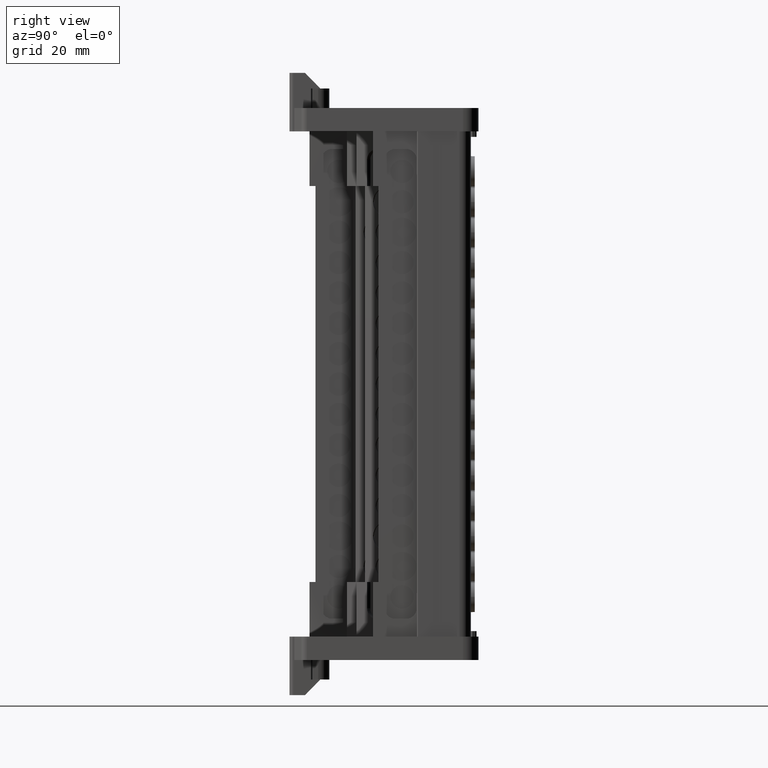
[diagram: clean part render]
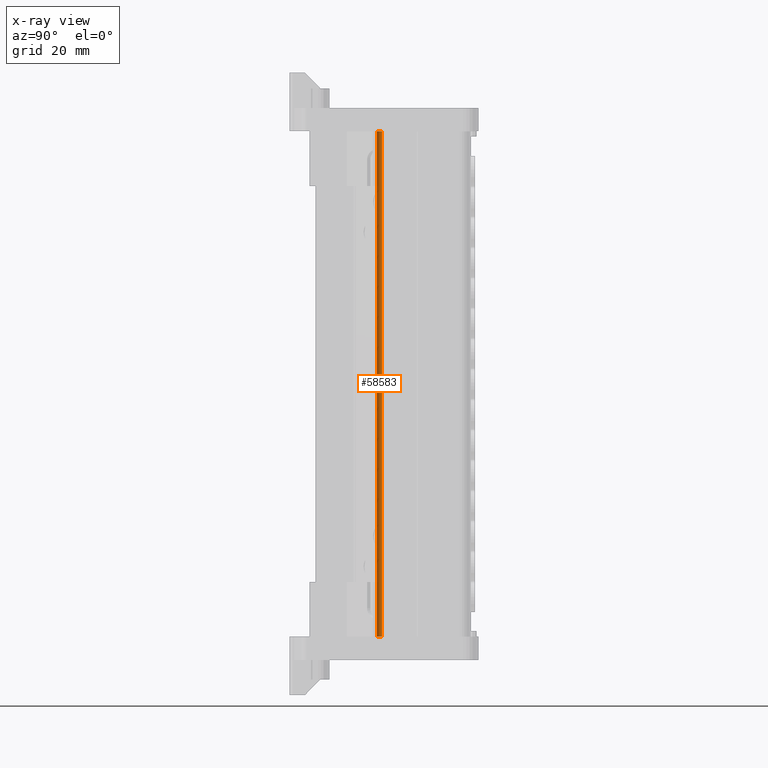
[diagram: x-ray — body ghosted, one internal face saturated and labeled with its STEP entity id]
A machine part, right view, then the same camera in x-ray: the body is ghosted and one INTERNAL B-rep face — a face not visible from any outside direction — is saturated and labeled: STEP entity #58583.
In plain terms, the highlighted cylindrical surface (edge-blend (fillet) strip) has radius 0.9996 mm, axis along (-0, -0, -1).
Its self-contained STEP definition (entity closure, byte-faithful):
#3525 = DIRECTION ( 'NONE',  ( 2.670878784694735100E-014, 7.311159212060596000E-014, 1.000000000000000000 ) ) ;
#3534 = CARTESIAN_POINT ( 'NONE',  ( 369.8117164848610500, -94.79873465798473800, -33.40539199998787700 ) ) ;
#3541 = DIRECTION ( 'NONE',  ( -5.553218615073116400E-014, 1.000000000000000000, -7.635675595725535700E-014 ) ) ;
#4204 = CARTESIAN_POINT ( 'NONE',  ( 369.8117164848645200, -94.79873465797527400, 95.86885799992805300 ) ) ;
#4217 = FACE_OUTER_BOUND ( 'NONE', #69800, .T. ) ;
#4229 = CYLINDRICAL_SURFACE ( 'NONE', #135409, 0.9996212121126252200 ) ;
#4230 = DIRECTION ( 'NONE',  ( 0.0000000000000000000, 1.000000000000000000, -6.941523268841395500E-014 ) ) ;
#4248 = DIRECTION ( 'NONE',  ( -2.670878784694735100E-014, -7.311159212060596000E-014, -1.000000000000000000 ) ) ;
#21555 = VERTEX_POINT ( 'NONE', #73149 ) ;
#24695 = AXIS2_PLACEMENT_3D ( 'NONE', #3534, #3525, #3541 ) ;
#24732 = CIRCLE ( 'NONE', #24695, 0.9996212121126252200 ) ;
#25215 = CIRCLE ( 'NONE', #25216, 0.9996212121126252200 ) ;
#25216 = AXIS2_PLACEMENT_3D ( 'NONE', #25549, #25558, #25548 ) ;
#25548 = DIRECTION ( 'NONE',  ( 0.0000000000000000000, 1.000000000000000000, -6.941523268841395500E-014 ) ) ;
#25549 = CARTESIAN_POINT ( 'NONE',  ( 369.8117164848645200, -94.79873465797526000, 96.29460800001182000 ) ) ;
#25558 = DIRECTION ( 'NONE',  ( -2.670878784694735100E-014, -7.311159212060596000E-014, -1.000000000000000000 ) ) ;
#31991 = EDGE_CURVE ( 'NONE', #93344, #63032, #74286, .T. ) ;
#32004 = EDGE_CURVE ( 'NONE', #21555, #94519, #76846, .T. ) ;
#33734 = EDGE_CURVE ( 'NONE', #63032, #21555, #25215, .T. ) ;
#34230 = EDGE_CURVE ( 'NONE', #94519, #93344, #24732, .T. ) ;
#49046 = ORIENTED_EDGE ( 'NONE', *, *, #32004, .T. ) ;
#49053 = ORIENTED_EDGE ( 'NONE', *, *, #34230, .T. ) ;
#49105 = ORIENTED_EDGE ( 'NONE', *, *, #31991, .T. ) ;
#49144 = ORIENTED_EDGE ( 'NONE', *, *, #33734, .T. ) ;
#56321 = CARTESIAN_POINT ( 'NONE',  ( 369.3892583057975100, -95.70469914661006800, -33.40539199998779900 ) ) ;
#56367 = CARTESIAN_POINT ( 'NONE',  ( 368.9057519962363500, -94.37627647892243500, -33.40539199998787700 ) ) ;
#58583 = ADVANCED_FACE ( 'NONE', ( #4217 ), #4229, .T. ) ;
#63032 = VERTEX_POINT ( 'NONE', #115979 ) ;
#69800 = EDGE_LOOP ( 'NONE', ( #49053, #49105, #49144, #49046 ) ) ;
#73149 = CARTESIAN_POINT ( 'NONE',  ( 368.9057519962397600, -94.37627647891297000, 96.29460800001183400 ) ) ;
#74259 = CARTESIAN_POINT ( 'NONE',  ( 369.3892583057980800, -95.70469914660883100, -10.89068745369763400 ) ) ;
#74277 = DIRECTION ( 'NONE',  ( 3.277371941038723600E-014, 7.028346808638694500E-014, 1.000000000000000000 ) ) ;
#74286 = LINE ( 'NONE', #74259, #119864 ) ;
#76846 = LINE ( 'NONE', #76856, #119886 ) ;
#76856 = CARTESIAN_POINT ( 'NONE',  ( 368.9057519962398100, -94.37627647891305600, 95.86885799992805300 ) ) ;
#76890 = DIRECTION ( 'NONE',  ( -2.670878784694735100E-014, -7.311159212060596000E-014, -1.000000000000000000 ) ) ;
#93344 = VERTEX_POINT ( 'NONE', #56321 ) ;
#94519 = VERTEX_POINT ( 'NONE', #56367 ) ;
#115979 = CARTESIAN_POINT ( 'NONE',  ( 369.3892583058013800, -95.70469914660076000, 96.29460800001189100 ) ) ;
#119864 = VECTOR ( 'NONE', #74277, 1000.000000000000000 ) ;
#119886 = VECTOR ( 'NONE', #76890, 1000.000000000000000 ) ;
#135409 = AXIS2_PLACEMENT_3D ( 'NONE', #4204, #4248, #4230 ) ;